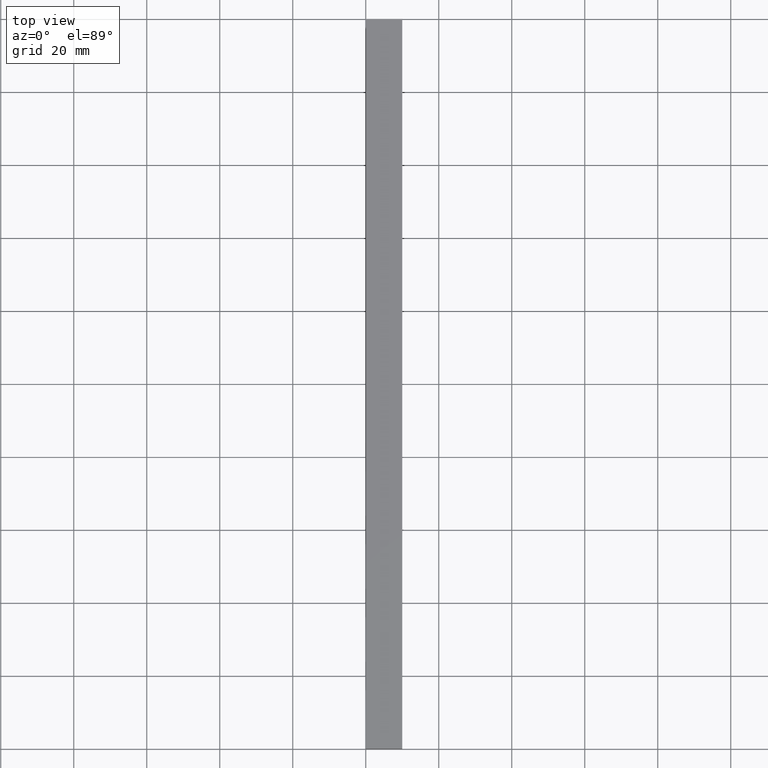
[diagram: clean part render]
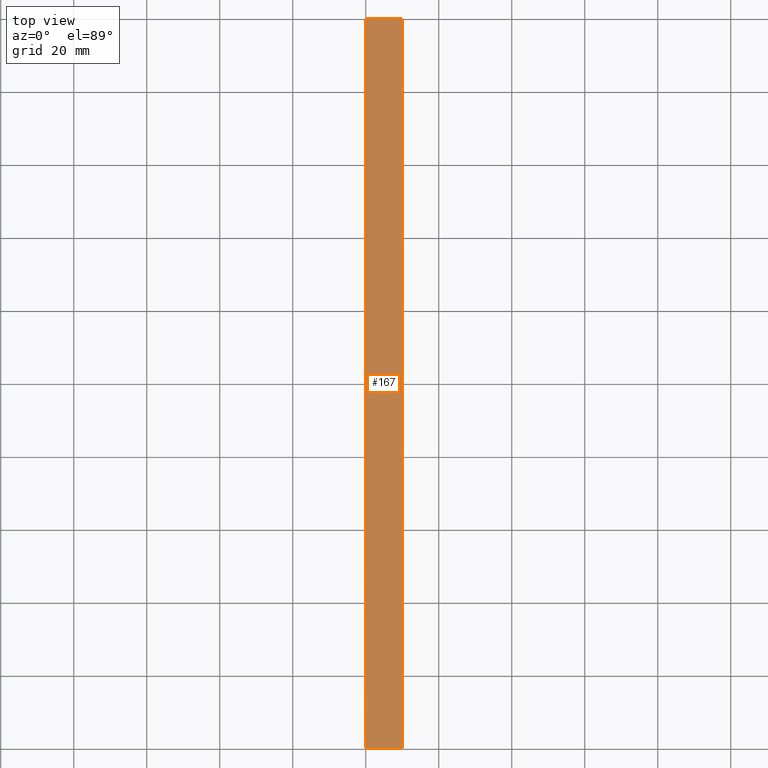
[diagram: same view with one face highlighted and labeled with its STEP entity id]
A machine part, top view. The second image highlights one B-rep face of the part: STEP entity #167.
In plain terms, the highlighted face is a freeform B-spline surface patch.
Its self-contained STEP definition (entity closure, byte-faithful):
#51=CARTESIAN_POINT('',(0.0,0.0,8.0));
#52=VERTEX_POINT('',#51);
#65=CARTESIAN_POINT('',(10.0,0.0,8.0));
#66=VERTEX_POINT('',#65);
#72=CARTESIAN_POINT('',(0.0,0.0,8.0));
#73=CARTESIAN_POINT('',(10.0,0.0,8.0));
#74=QUASI_UNIFORM_CURVE('',1,(#72,#73),.UNSPECIFIED.,.F.,.U.);
#75=EDGE_CURVE('',#52,#66,#74,.T.);
#87=CARTESIAN_POINT('',(0.0,200.0,8.0));
#88=VERTEX_POINT('',#87);
#94=CARTESIAN_POINT('',(10.0,200.0,8.0));
#95=VERTEX_POINT('',#94);
#96=CARTESIAN_POINT('',(0.0,200.0,8.0));
#97=CARTESIAN_POINT('',(10.0,200.0,8.0));
#98=QUASI_UNIFORM_CURVE('',1,(#96,#97),.UNSPECIFIED.,.F.,.U.);
#99=EDGE_CURVE('',#88,#95,#98,.T.);
#144=CARTESIAN_POINT('',(10.0,200.0,8.0));
#145=CARTESIAN_POINT('',(10.0,0.0,8.0));
#146=QUASI_UNIFORM_CURVE('',1,(#144,#145),.UNSPECIFIED.,.F.,.U.);
#147=EDGE_CURVE('',#95,#66,#146,.T.);
#152=CARTESIAN_POINT('',(10.499499980618060,-9.989999612361194,8.0));
#153=CARTESIAN_POINT('',(-0.499500248838961,-9.989999612361194,8.0));
#154=CARTESIAN_POINT('',(10.499499980618060,209.990004976779200,8.0));
#155=CARTESIAN_POINT('',(-0.499500248838961,209.990004976779200,8.0));
#156=B_SPLINE_SURFACE_WITH_KNOTS('',1,1,((#152,#154),(#153,#155)),.UNSPECIFIED.,.F.,.F.,.U.,(2,2),(2,2),(0.0,10.999000229457019),(0.0,219.980004589140410),.UNSPECIFIED.);
#157=ORIENTED_EDGE('',*,*,#75,.T.);
#158=ORIENTED_EDGE('',*,*,#147,.F.);
#159=ORIENTED_EDGE('',*,*,#99,.F.);
#160=CARTESIAN_POINT('',(0.0,200.0,8.0));
#161=CARTESIAN_POINT('',(0.0,0.0,8.0));
#162=QUASI_UNIFORM_CURVE('',1,(#160,#161),.UNSPECIFIED.,.F.,.U.);
#163=EDGE_CURVE('',#88,#52,#162,.T.);
#164=ORIENTED_EDGE('',*,*,#163,.T.);
#165=EDGE_LOOP('',(#157,#158,#159,#164));
#166=FACE_OUTER_BOUND('',#165,.T.);
#167=ADVANCED_FACE('',(#166),#156,.F.);